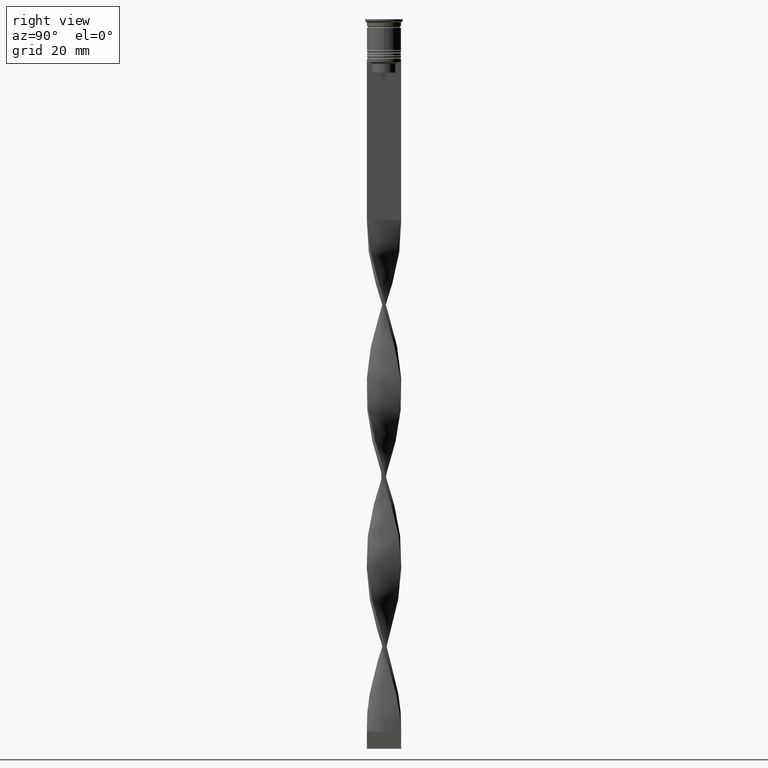
[diagram: clean part render]
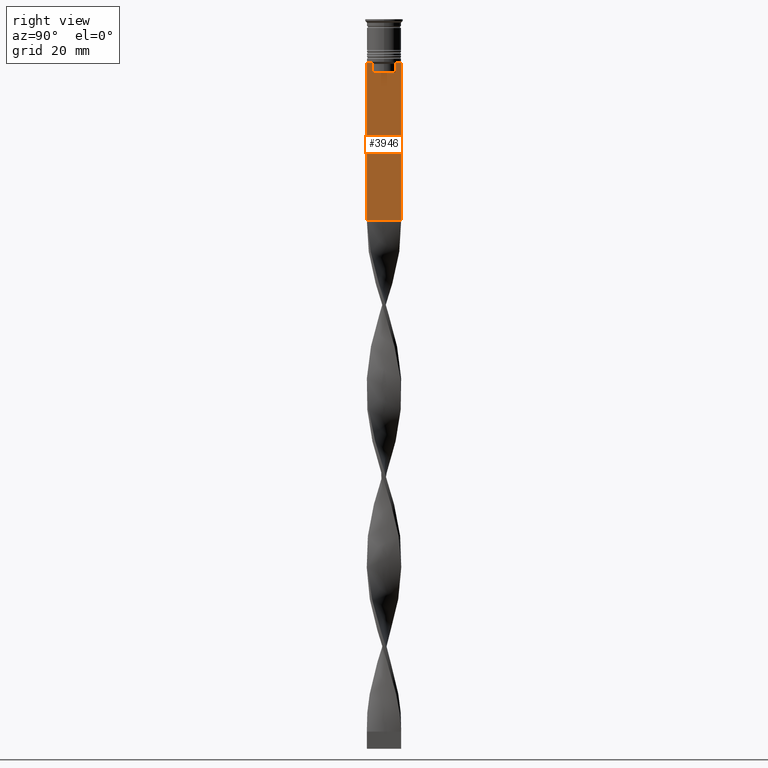
[diagram: same view with one face highlighted and labeled with its STEP entity id]
A machine part, right view. The second image highlights one B-rep face of the part: STEP entity #3946.
In plain terms, the highlighted planar face has unit normal (-1, 0, 0).
Its self-contained STEP definition (entity closure, byte-faithful):
#46 = DIRECTION ( 'NONE',  ( 0.000000000000000000, 0.000000000000000000, -1.000000000000000000 ) ) ;
#79 = CARTESIAN_POINT ( 'NONE',  ( 0.5000000000000000000, -3.531412985305424801, -12.83345201382502765 ) ) ;
#167 = CARTESIAN_POINT ( 'NONE',  ( 0.5000000000000000000, 5.000000000000000888, -58.50000000000000000 ) ) ;
#180 = CARTESIAN_POINT ( 'NONE',  ( 0.5000000000000000000, 3.867815921162742754, -12.50000000000000000 ) ) ;
#186 = VERTEX_POINT ( 'NONE', #2527 ) ;
#194 = LINE ( 'NONE', #517, #2181 ) ;
#198 = EDGE_CURVE ( 'NONE', #3921, #252, #990, .T. ) ;
#231 = LINE ( 'NONE', #553, #1551 ) ;
#252 = VERTEX_POINT ( 'NONE', #294 ) ;
#253 = CARTESIAN_POINT ( 'NONE',  ( 0.5000000000000000000, 3.363034344160045208, 0.000000000000000000 ) ) ;
#294 = CARTESIAN_POINT ( 'NONE',  ( 0.5000000000000000000, -4.999999999999999112, -12.50000000000000000 ) ) ;
#316 = CARTESIAN_POINT ( 'NONE',  ( 0.5000000000000000000, 3.363034344160045652, -15.50000000000000000 ) ) ;
#326 = DIRECTION ( 'NONE',  ( 0.000000000000000000, -1.000000000000000000, 0.000000000000000000 ) ) ;
#334 = ORIENTED_EDGE ( 'NONE', *, *, #2312, .T. ) ;
#337 = CARTESIAN_POINT ( 'NONE',  ( 0.5000000000000000000, -4.874423042781575788, -12.50000000000000000 ) ) ;
#418 = VECTOR ( 'NONE', #326, 1000.000000000000000 ) ;
#423 = CARTESIAN_POINT ( 'NONE',  ( 0.5000000000000000000, -3.699658232838647365, -12.66676999593996555 ) ) ;
#483 = LINE ( 'NONE', #1414, #950 ) ;
#488 = ORIENTED_EDGE ( 'NONE', *, *, #584, .T. ) ;
#517 = CARTESIAN_POINT ( 'NONE',  ( 0.5000000000000000000, 3.399999999999998135, -15.50000000000000000 ) ) ;
#529 = VERTEX_POINT ( 'NONE', #866 ) ;
#553 = CARTESIAN_POINT ( 'NONE',  ( 0.5000000000000000000, -4.999999999999999112, -2.450124378879110054 ) ) ;
#584 = EDGE_CURVE ( 'NONE', #2709, #186, #3650, .T. ) ;
#594 = DIRECTION ( 'NONE',  ( 0.000000000000000000, -1.000000000000000000, 0.000000000000000000 ) ) ;
#598 = CARTESIAN_POINT ( 'NONE',  ( 0.5000000000000000000, 5.000000000000000888, -2.450124378879110054 ) ) ;
#615 = EDGE_CURVE ( 'NONE', #1159, #3893, #3201, .T. ) ;
#631 = CARTESIAN_POINT ( 'NONE',  ( 0.5000000000000000000, -3.363034344160045208, -13.00000000000000178 ) ) ;
#644 = CARTESIAN_POINT ( 'NONE',  ( 0.5000000000000000000, -4.999999999999999112, -12.50000000000000000 ) ) ;
#696 = CARTESIAN_POINT ( 'NONE',  ( 0.5000000000000000000, 4.874423042781575788, -12.50000000000000000 ) ) ;
#750 = VECTOR ( 'NONE', #919, 1000.000000000000000 ) ;
#771 = DIRECTION ( 'NONE',  ( 0.000000000000000000, -1.000000000000000000, 0.000000000000000000 ) ) ;
#842 = CARTESIAN_POINT ( 'NONE',  ( 0.5000000000000000000, -4.999999999999999112, -58.50000000000000000 ) ) ;
#866 = CARTESIAN_POINT ( 'NONE',  ( 0.5000000000000000000, -4.999999999999999112, -58.50000000000000000 ) ) ;
#889 = CARTESIAN_POINT ( 'NONE',  ( 0.5000000000000000000, -4.999999999999999112, -12.50000000000000000 ) ) ;
#919 = DIRECTION ( 'NONE',  ( 0.000000000000000000, 0.000000000000000000, -1.000000000000000000 ) ) ;
#940 = DIRECTION ( 'NONE',  ( 0.000000000000000000, 0.000000000000000000, 1.000000000000000000 ) ) ;
#950 = VECTOR ( 'NONE', #997, 1000.000000000000000 ) ;
#990 = LINE ( 'NONE', #644, #418 ) ;
#997 = DIRECTION ( 'NONE',  ( -0.000000000000000000, -0.000000000000000000, 1.000000000000000000 ) ) ;
#1022 = VECTOR ( 'NONE', #3568, 1000.000000000000000 ) ;
#1151 = EDGE_CURVE ( 'NONE', #3893, #3921, #2708, .T. ) ;
#1154 = VERTEX_POINT ( 'NONE', #167 ) ;
#1159 = VERTEX_POINT ( 'NONE', #631 ) ;
#1262 = FACE_OUTER_BOUND ( 'NONE', #3056, .T. ) ;
#1367 = EDGE_CURVE ( 'NONE', #529, #1154, #1726, .T. ) ;
#1414 = CARTESIAN_POINT ( 'NONE',  ( 0.5000000000000000000, -3.363034344160045208, 0.000000000000000000 ) ) ;
#1551 = VECTOR ( 'NONE', #46, 1000.000000000000000 ) ;
#1621 = VERTEX_POINT ( 'NONE', #3238 ) ;
#1635 = CARTESIAN_POINT ( 'NONE',  ( 0.5000000000000000000, -3.867815921162742754, -12.50000000000000000 ) ) ;
#1667 = CARTESIAN_POINT ( 'NONE',  ( 0.5000000000000000000, -3.867815921162742754, -12.50000000000000000 ) ) ;
#1714 = DIRECTION ( 'NONE',  ( 0.000000000000000000, -1.000000000000000000, 0.000000000000000000 ) ) ;
#1726 = LINE ( 'NONE', #842, #2047 ) ;
#1775 = LINE ( 'NONE', #253, #1022 ) ;
#1810 = AXIS2_PLACEMENT_3D ( 'NONE', #2839, #1859, #940 ) ;
#1858 = LINE ( 'NONE', #598, #750 ) ;
#1859 = DIRECTION ( 'NONE',  ( -1.000000000000000000, 0.000000000000000000, 0.000000000000000000 ) ) ;
#1895 = VERTEX_POINT ( 'NONE', #316 ) ;
#1900 = B_SPLINE_CURVE_WITH_KNOTS ( 'NONE', 3,
 ( #180, #2060, #3598, #2021 ),
 .UNSPECIFIED., .F., .F.,
 ( 4, 4 ),
 ( 0.006644825462451552783, 0.007355321358912435097 ),
 .UNSPECIFIED. ) ;
#1914 = ORIENTED_EDGE ( 'NONE', *, *, #1367, .T. ) ;
#1964 = CARTESIAN_POINT ( 'NONE',  ( 0.5000000000000000000, -3.363034344160045208, -13.00000000000000178 ) ) ;
#1996 = EDGE_CURVE ( 'NONE', #3929, #1154, #1858, .T. ) ;
#2021 = CARTESIAN_POINT ( 'NONE',  ( 0.5000000000000000000, 3.363034344160045208, -13.00000000000000178 ) ) ;
#2047 = VECTOR ( 'NONE', #2101, 1000.000000000000000 ) ;
#2060 = CARTESIAN_POINT ( 'NONE',  ( 0.5000000000000000000, 3.699657965831574913, -12.66677026074361301 ) ) ;
#2076 = ORIENTED_EDGE ( 'NONE', *, *, #1996, .F. ) ;
#2101 = DIRECTION ( 'NONE',  ( 0.000000000000000000, 1.000000000000000000, 0.000000000000000000 ) ) ;
#2122 = EDGE_CURVE ( 'NONE', #1621, #1895, #1775, .T. ) ;
#2169 = EDGE_CURVE ( 'NONE', #1895, #3311, #194, .T. ) ;
#2181 = VECTOR ( 'NONE', #771, 1000.000000000000000 ) ;
#2218 = CARTESIAN_POINT ( 'NONE',  ( 0.5000000000000000000, -3.363034344160045652, -15.50000000000000000 ) ) ;
#2262 = VECTOR ( 'NONE', #594, 1000.000000000000000 ) ;
#2312 = EDGE_CURVE ( 'NONE', #3311, #1159, #483, .T. ) ;
#2315 = ORIENTED_EDGE ( 'NONE', *, *, #198, .T. ) ;
#2493 = ORIENTED_EDGE ( 'NONE', *, *, #3872, .T. ) ;
#2504 = VECTOR ( 'NONE', #2765, 1000.000000000000000 ) ;
#2516 = ORIENTED_EDGE ( 'NONE', *, *, #2169, .T. ) ;
#2527 = CARTESIAN_POINT ( 'NONE',  ( 0.5000000000000000000, 3.867815921162742754, -12.50000000000000000 ) ) ;
#2536 = EDGE_CURVE ( 'NONE', #3929, #2709, #3934, .T. ) ;
#2689 = ORIENTED_EDGE ( 'NONE', *, *, #2536, .T. ) ;
#2708 = LINE ( 'NONE', #2970, #3708 ) ;
#2709 = VERTEX_POINT ( 'NONE', #696 ) ;
#2765 = DIRECTION ( 'NONE',  ( 0.000000000000000000, -1.000000000000000000, 0.000000000000000000 ) ) ;
#2839 = CARTESIAN_POINT ( 'NONE',  ( 0.5000000000000000000, -4.999999999999999112, -2.450124378879110054 ) ) ;
#2970 = CARTESIAN_POINT ( 'NONE',  ( 0.5000000000000000000, -4.999999999999999112, -12.50000000000000000 ) ) ;
#3056 = EDGE_LOOP ( 'NONE', ( #488, #3717, #3695, #2516, #334, #3443, #3914, #2315, #2493, #1914, #2076, #2689 ) ) ;
#3201 = B_SPLINE_CURVE_WITH_KNOTS ( 'NONE', 3,
 ( #1964, #79, #423, #1667 ),
 .UNSPECIFIED., .F., .F.,
 ( 4, 4 ),
 ( 0.01632394437298965648, 0.01703543518243618576 ),
 .UNSPECIFIED. ) ;
#3238 = CARTESIAN_POINT ( 'NONE',  ( 0.5000000000000000000, 3.363034344160045208, -13.00000000000000178 ) ) ;
#3311 = VERTEX_POINT ( 'NONE', #2218 ) ;
#3419 = PLANE ( 'NONE',  #1810 ) ;
#3443 = ORIENTED_EDGE ( 'NONE', *, *, #615, .T. ) ;
#3568 = DIRECTION ( 'NONE',  ( 0.000000000000000000, 0.000000000000000000, -1.000000000000000000 ) ) ;
#3598 = CARTESIAN_POINT ( 'NONE',  ( 0.5000000000000000000, 3.531412678228260216, -12.83345231756357840 ) ) ;
#3650 = LINE ( 'NONE', #889, #2262 ) ;
#3695 = ORIENTED_EDGE ( 'NONE', *, *, #2122, .T. ) ;
#3708 = VECTOR ( 'NONE', #1714, 1000.000000000000000 ) ;
#3717 = ORIENTED_EDGE ( 'NONE', *, *, #3738, .T. ) ;
#3738 = EDGE_CURVE ( 'NONE', #186, #1621, #1900, .T. ) ;
#3743 = CARTESIAN_POINT ( 'NONE',  ( 0.5000000000000000000, 5.000000000000000888, -12.50000000000000000 ) ) ;
#3872 = EDGE_CURVE ( 'NONE', #252, #529, #231, .T. ) ;
#3893 = VERTEX_POINT ( 'NONE', #1635 ) ;
#3914 = ORIENTED_EDGE ( 'NONE', *, *, #1151, .T. ) ;
#3921 = VERTEX_POINT ( 'NONE', #337 ) ;
#3929 = VERTEX_POINT ( 'NONE', #3743 ) ;
#3934 = LINE ( 'NONE', #3980, #2504 ) ;
#3946 = ADVANCED_FACE ( 'NONE', ( #1262 ), #3419, .F. ) ;
#3980 = CARTESIAN_POINT ( 'NONE',  ( 0.5000000000000000000, -4.999999999999999112, -12.50000000000000000 ) ) ;